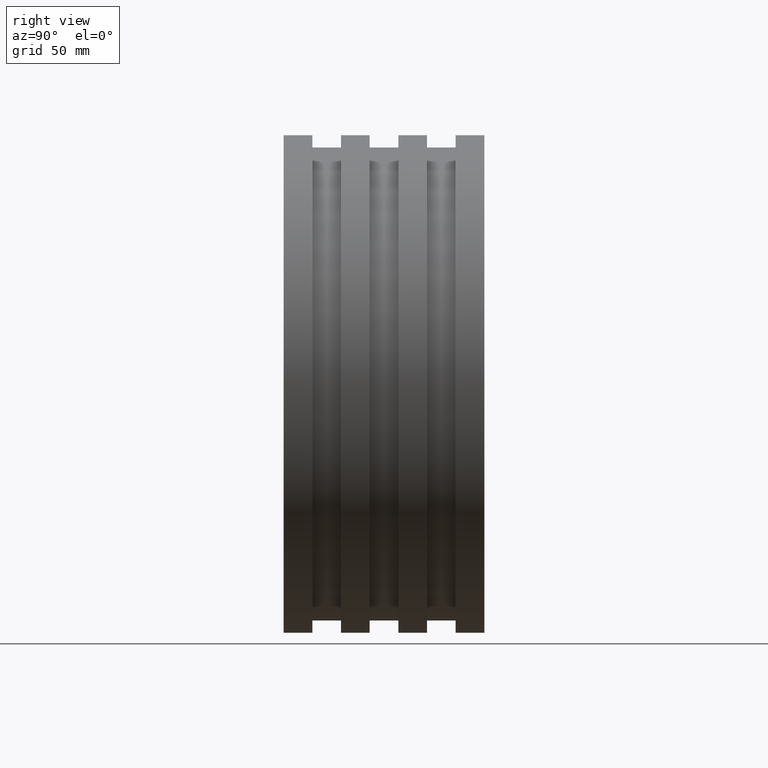
[diagram: clean part render]
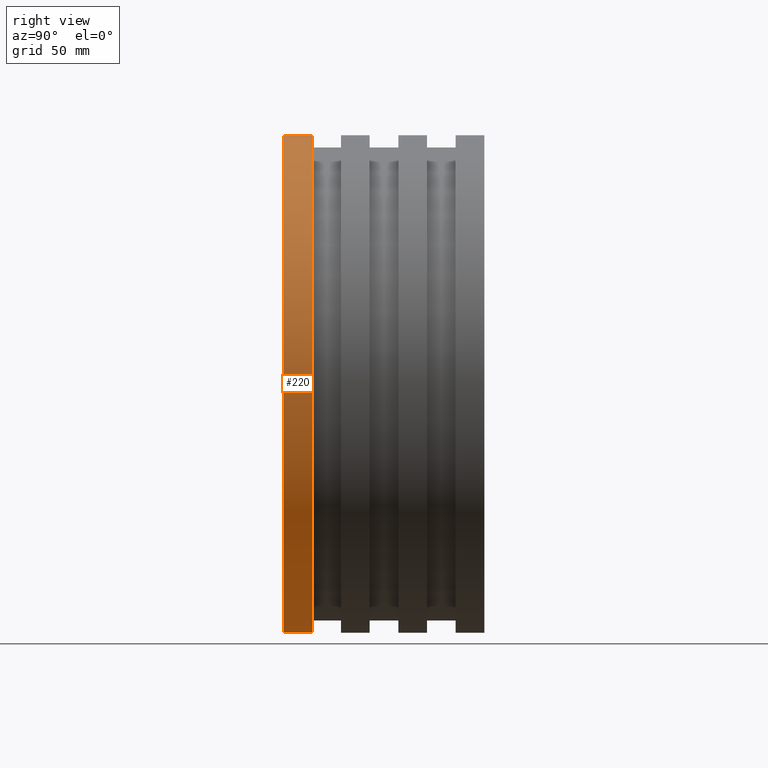
[diagram: same view with one face highlighted and labeled with its STEP entity id]
A machine part, right view. The second image highlights one B-rep face of the part: STEP entity #220.
In plain terms, the highlighted cylindrical surface (bore or boss wall) has radius 167.5 mm, axis along (0, 1, 0).
Its self-contained STEP definition (entity closure, byte-faithful):
#17=CYLINDRICAL_SURFACE('',#248,167.5);
#30=FACE_BOUND('',#76,.T.);
#50=FACE_OUTER_BOUND('',#75,.T.);
#75=EDGE_LOOP('',(#175));
#76=EDGE_LOOP('',(#176));
#110=CIRCLE('',#247,167.5);
#111=CIRCLE('',#249,167.5);
#130=VERTEX_POINT('',#375);
#131=VERTEX_POINT('',#378);
#150=EDGE_CURVE('',#130,#130,#110,.T.);
#151=EDGE_CURVE('',#131,#131,#111,.T.);
#175=ORIENTED_EDGE('',*,*,#150,.T.);
#176=ORIENTED_EDGE('',*,*,#151,.F.);
#220=ADVANCED_FACE('',(#50,#30),#17,.T.);
#247=AXIS2_PLACEMENT_3D('',#376,#299,#300);
#248=AXIS2_PLACEMENT_3D('',#377,#301,#302);
#249=AXIS2_PLACEMENT_3D('',#379,#303,#304);
#299=DIRECTION('center_axis',(0.,1.,0.));
#300=DIRECTION('ref_axis',(1.,0.,0.));
#301=DIRECTION('center_axis',(0.,1.,0.));
#302=DIRECTION('ref_axis',(-1.,0.,0.));
#303=DIRECTION('center_axis',(0.,1.,0.));
#304=DIRECTION('ref_axis',(1.,0.,0.));
#375=CARTESIAN_POINT('',(-167.5,0.,0.));
#376=CARTESIAN_POINT('Origin',(0.,0.,0.));
#377=CARTESIAN_POINT('Origin',(0.,9.64285714285714,0.));
#378=CARTESIAN_POINT('',(-167.5,19.2857142857143,0.));
#379=CARTESIAN_POINT('Origin',(0.,19.2857142857143,0.));